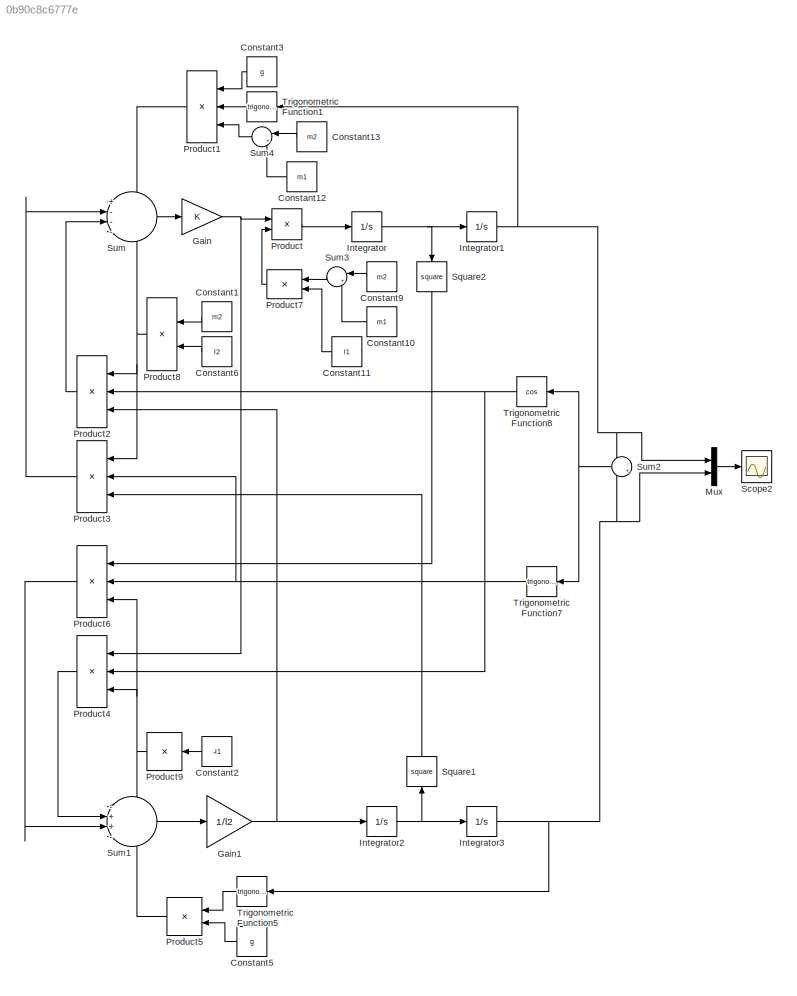
MODEL slx_0b90c8c6777e
KIND model
CONFIG AbsTol = auto
CONFIG EnableMultiTasking = off
CONFIG FixedStep = auto
CONFIG MaxStep = auto
CONFIG MinStep = auto
CONFIG RelTol = 1e-3
CONFIG SampleTimeConstraint = Unconstrained
CONFIG SolverName = VariableStepAuto
CONFIG StartTime = 0.0
CONFIG StopTime = 10.0
BLOCK [Constant] Constant1
  NameLocation = top
  Value = m2
BLOCK [Constant] Constant10
  NameLocation = top
  Value = m1
BLOCK [Constant] Constant11
  NameLocation = top
  Value = l1
BLOCK [Constant] Constant12
  NameLocation = top
  Value = m1
BLOCK [Constant] Constant13
  NameLocation = top
  Value = m2
BLOCK [Constant] Constant2
  NameLocation = top
  Value = -l1
BLOCK [Constant] Constant3
  NameLocation = top
  Value = g
BLOCK [Constant] Constant5
  NameLocation = top
  Value = g
BLOCK [Constant] Constant6
  NameLocation = top
  Value = l2
BLOCK [Constant] Constant9
  NameLocation = top
  Value = m2
BLOCK [Gain] Gain
BLOCK [Gain] Gain1
  Gain = 1/l2
BLOCK [Integrator] Integrator
BLOCK [Integrator] Integrator1
BLOCK [Integrator] Integrator2
BLOCK [Integrator] Integrator3
  InitialCondition = 35*pi/180
BLOCK [Mux] Mux
  DisplayOption = bar
  Inputs = 2
BLOCK [Product] Product
  Inputs = */
BLOCK [Product] Product1
  Inputs = 3
  NameLocation = top
BLOCK [Product] Product2
  Inputs = 3
  NameLocation = top
BLOCK [Product] Product3
  Inputs = 3
  NameLocation = top
BLOCK [Product] Product4
  Inputs = 3
  NameLocation = top
BLOCK [Product] Product5
  NameLocation = top
BLOCK [Product] Product6
  Inputs = 3
  NameLocation = top
BLOCK [Product] Product7
  NameLocation = top
BLOCK [Product] Product8
  NameLocation = top
BLOCK [Product] Product9
  Inputs = 1
  NameLocation = top
BLOCK [Scope] Scope2
  Floating = off
  NumInputPorts = 1
  ScopeSpecificationString = Simulink.scopes.TimeScopeBlockCfg('CurrentConfiguration', extmgr.ConfigurationSet(extmgr.Configuration('Core','General UI',true),extmgr.Configuration('Core','Source UI',true),extmgr.Configuration('Sources','WiredSimulink',true,'DataLoggingVariableName','ScopeData2'),extmgr.Configuration('Visuals','Time Domain',true,'SerializedDisplays',{struct('MinYLimReal','-0.69057','MaxYLimReal','0.75547','YLab...<+1502ch>
BLOCK [Math] Square1
  NameLocation = right
  Operator = square
  RndMeth = Zero
  SignedPower = on
BLOCK [Math] Square2
  NameLocation = left
  Operator = square
  RndMeth = Zero
  SignedPower = on
BLOCK [Sum] Sum
  Inputs = +---
BLOCK [Sum] Sum1
  Inputs = -++-
BLOCK [Sum] Sum2
  Inputs = -+
  NameLocation = top
BLOCK [Sum] Sum3
  Inputs = |+-
  NameLocation = top
BLOCK [Sum] Sum4
  Inputs = |++
  NameLocation = top
BLOCK [Trigonometry] Trigonometric Function1
  NameLocation = top
BLOCK [Trigonometry] Trigonometric Function5
  NameLocation = top
BLOCK [Trigonometry] Trigonometric Function7
  NameLocation = top
BLOCK [Trigonometry] Trigonometric Function8
  NameLocation = top
  Operator = cos
LINE Constant10:1 -> Sum3:2
LINE Constant11:1 -> Product7:2
LINE Constant12:1 -> Sum4:2
LINE Constant13:1 -> Sum4:1
LINE Constant1:1 -> Product8:1
LINE Constant2:1 -> Product9:1
LINE Constant3:1 -> Product1:1
LINE Constant5:1 -> Product5:2
LINE Constant6:1 -> Product8:2
LINE Constant9:1 -> Sum3:1
NET Gain1:1 -> Integrator2:1, Product2:3
NET Gain:1 -> Product4:1, Product:1
NET Integrator1:1 -> Mux:1, Sum2:1, Trigonometric Function1:1
NET Integrator2:1 -> Integrator3:1, Square1:1
NET Integrator3:1 -> Mux:2, Sum2:2, Trigonometric Function5:1
NET Integrator:1 -> Integrator1:1, Square2:1
LINE Mux:1 -> Scope2:1
LINE Product1:1 -> Sum:1
LINE Product2:1 -> Sum:3
LINE Product3:1 -> Sum:2
LINE Product4:1 -> Sum1:2
LINE Product5:1 -> Sum1:4
LINE Product6:1 -> Sum1:3
LINE Product7:1 -> Product:2
NET Product8:1 -> Product2:1, Product3:1, Sum:4
NET Product9:1 -> Product4:3, Product6:3, Sum1:1
LINE Product:1 -> Integrator:1
LINE Square1:1 -> Product3:3
LINE Square2:1 -> Product6:1
LINE Sum1:1 -> Gain1:1
NET Sum2:1 -> Trigonometric Function7:1, Trigonometric Function8:1
LINE Sum3:1 -> Product7:1
LINE Sum4:1 -> Product1:3
LINE Sum:1 -> Gain:1
LINE Trigonometric Function1:1 -> Product1:2
LINE Trigonometric Function5:1 -> Product5:1
NET Trigonometric Function7:1 -> Product3:2, Product6:2
NET Trigonometric Function8:1 -> Product2:2, Product4:2
note: NET lines group one-source signal fan-out (src -> all destinations, sorted); 1:1 wires keep LINE
